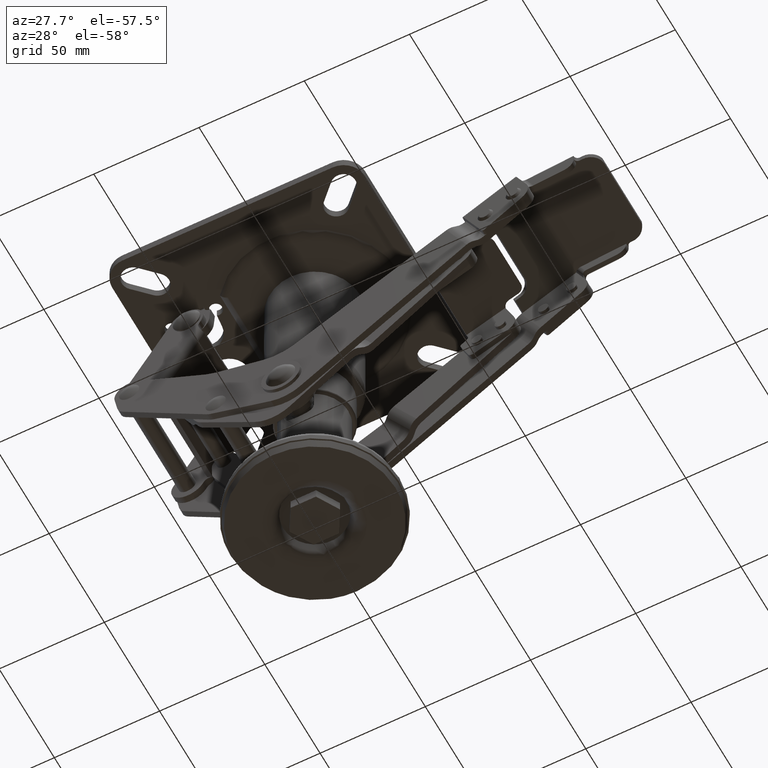
[diagram: clean part render]
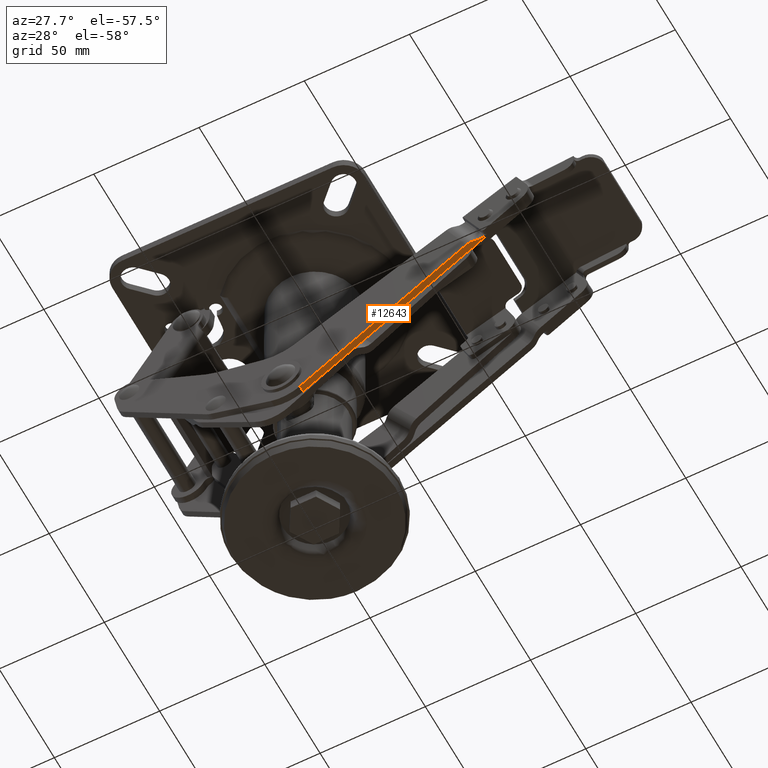
[diagram: same view with one face highlighted and labeled with its STEP entity id]
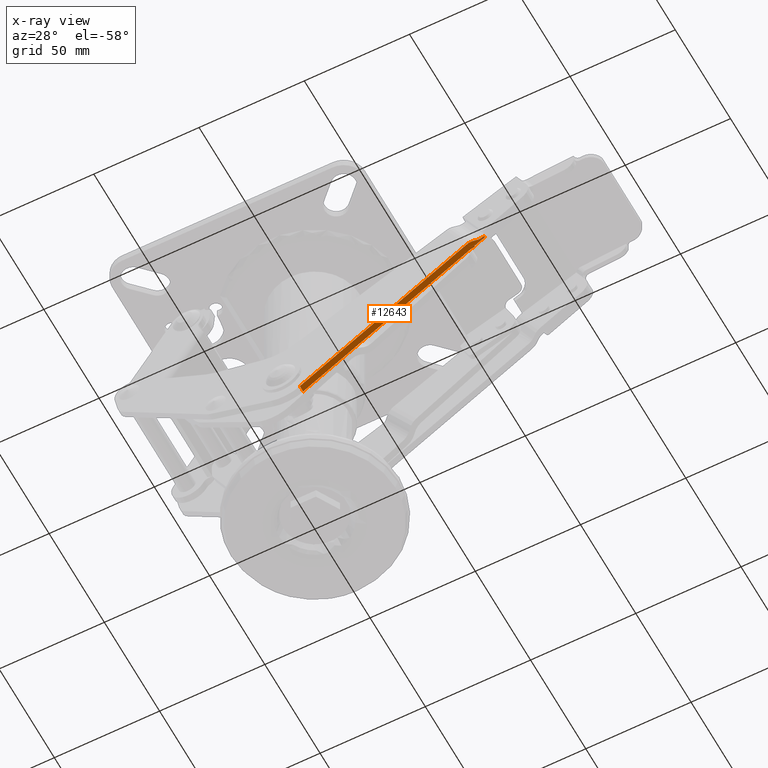
[diagram: x-ray of the same camera — body ghosted, the highlighted face saturated]
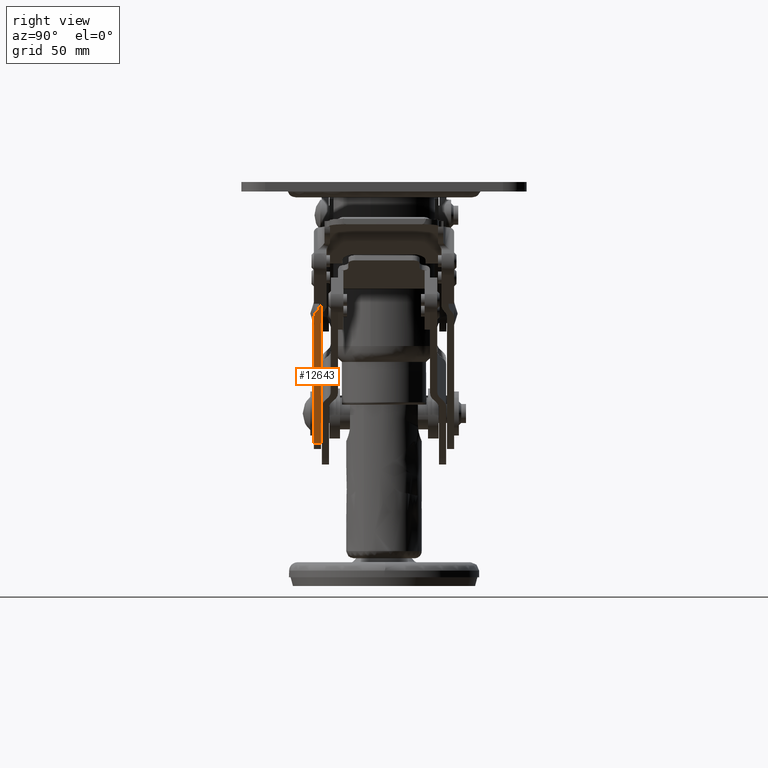
[diagram: same view with one face highlighted and labeled with its STEP entity id]
A machine part, auxiliary view. The second image highlights one B-rep face of the part: STEP entity #12643.
The next image is the same camera in x-ray: the body ghosted, the highlighted face saturated — about 0% of this face is hidden behind the body in this view.
A second angle (right view) of the same face is appended — the face is thin or edge-on in the first view.
In plain terms, the highlighted face is a freeform B-spline surface patch.
Its self-contained STEP definition (entity closure, byte-faithful):
#11953=CARTESIAN_POINT('',(89.729313842261803,-26.047778945925000,-55.354026375014087));
#11954=VERTEX_POINT('',#11953);
#11962=CARTESIAN_POINT('',(87.513095883884702,-26.500000000000000,-56.838427067744597));
#11963=VERTEX_POINT('',#11962);
#11964=CARTESIAN_POINT('',(87.513095883884702,-26.500000000000000,-56.838427067744597));
#11965=CARTESIAN_POINT('',(88.265961319396993,-26.500453821688492,-56.334165305139763));
#11966=CARTESIAN_POINT('',(89.018623730153706,-26.346740855762501,-55.830039526492591));
#11967=CARTESIAN_POINT('',(89.729313842261803,-26.047778945925000,-55.354026375014087));
#11968=B_SPLINE_CURVE_WITH_KNOTS('',3,(#11964,#11965,#11966,#11967),.UNSPECIFIED.,.F.,.U.,(4,4),(9.680939E-009,2.718286174982941),.UNSPECIFIED.);
#11969=EDGE_CURVE('',#11963,#11954,#11968,.T.);
#12005=CARTESIAN_POINT('',(90.998992822317987,-28.350000000000001,-54.503608052927703));
#12006=VERTEX_POINT('',#12005);
#12012=CARTESIAN_POINT('',(94.452934891030793,-27.199999999999999,-52.190192091258112));
#12013=VERTEX_POINT('',#12012);
#12014=CARTESIAN_POINT('',(94.452934891030793,-27.199999999999999,-52.190192091258112));
#12015=CARTESIAN_POINT('',(93.810529079262722,-27.199560350765751,-52.620469099166279));
#12016=CARTESIAN_POINT('',(92.601464642036575,-27.410146424295970,-53.430288404794538));
#12017=CARTESIAN_POINT('',(91.485117166304235,-27.999137256411380,-54.178006814006842));
#12018=CARTESIAN_POINT('',(90.998992822317987,-28.350000000000001,-54.503608052927703));
#12019=B_SPLINE_CURVE_WITH_KNOTS('',3,(#12014,#12015,#12016,#12017,#12018),.UNSPECIFIED.,.F.,.U.,(4,1,4),(0.000000042197829,2.319506076339589,4.366172766742202),.UNSPECIFIED.);
#12020=EDGE_CURVE('',#12013,#12006,#12019,.T.);
#12087=CARTESIAN_POINT('',(87.545050753605111,-29.500000000000000,-56.817024014597301));
#12088=VERTEX_POINT('',#12087);
#12089=CARTESIAN_POINT('',(90.998992822317987,-28.350000000000001,-54.503608052927703));
#12090=CARTESIAN_POINT('',(90.577665353887880,-28.653997930279480,-54.785808990628901));
#12091=CARTESIAN_POINT('',(89.472003781253747,-29.264706496853510,-55.526370088484697));
#12092=CARTESIAN_POINT('',(88.263064999724193,-29.500630718322380,-56.336105231180298));
#12093=CARTESIAN_POINT('',(87.545050753605111,-29.500000000000000,-56.817024014597301));
#12094=B_SPLINE_CURVE_WITH_KNOTS('',3,(#12089,#12090,#12091,#12092,#12093),.UNSPECIFIED.,.F.,.U.,(4,1,4),(0.000000042207645,1.773776226504157,4.366179802982480),.UNSPECIFIED.);
#12095=EDGE_CURVE('',#12006,#12088,#12094,.T.);
#12217=CARTESIAN_POINT('',(89.729313842260495,-26.500000000000000,-55.354026375015003));
#12218=VERTEX_POINT('',#12217);
#12219=CARTESIAN_POINT('',(94.744120023049604,-26.500000000000000,-51.995159192960500));
#12220=VERTEX_POINT('',#12219);
#12221=CARTESIAN_POINT('',(89.729313842260495,-26.500000000000000,-55.354026375015003));
#12222=CARTESIAN_POINT('',(94.744120023049604,-26.500000000000000,-51.995159192960500));
#12223=QUASI_UNIFORM_CURVE('',1,(#12221,#12222),.UNSPECIFIED.,.F.,.U.);
#12224=EDGE_CURVE('',#12218,#12220,#12223,.T.);
#12596=CARTESIAN_POINT('',(99.059630902187621,-29.672438422626222,-49.104673031947101));
#12597=CARTESIAN_POINT('',(4.031955258630787,-29.672438422626222,-112.753262747897400));
#12598=CARTESIAN_POINT('',(99.059630902187621,-25.875340677625090,-49.104673031947101));
#12599=CARTESIAN_POINT('',(4.031955258630787,-25.875340677625090,-112.753262747897400));
#12600=B_SPLINE_SURFACE_WITH_KNOTS('',1,1,((#12596,#12598),(#12597,#12599)),.UNSPECIFIED.,.F.,.F.,.U.,(2,2),(2,2),(0.0,114.373957311297100),(0.0,3.797097745001125),.UNSPECIFIED.);
#12601=CARTESIAN_POINT('',(94.744120023049604,-27.199999999999999,-51.995159192960500));
#12602=VERTEX_POINT('',#12601);
#12603=CARTESIAN_POINT('',(94.744120023049604,-27.199999999999999,-51.995159192960500));
#12604=CARTESIAN_POINT('',(94.452934891030793,-27.199999999999999,-52.190192091258112));
#12605=QUASI_UNIFORM_CURVE('',1,(#12603,#12604),.UNSPECIFIED.,.F.,.U.);
#12606=EDGE_CURVE('',#12602,#12013,#12605,.T.);
#12607=ORIENTED_EDGE('',*,*,#12606,.T.);
#12608=ORIENTED_EDGE('',*,*,#12020,.T.);
#12609=ORIENTED_EDGE('',*,*,#12095,.T.);
#12610=CARTESIAN_POINT('',(8.347470000000000,-29.500000000000000,-109.862774000000000));
#12611=VERTEX_POINT('',#12610);
#12612=CARTESIAN_POINT('',(8.347470000000000,-29.500000000000000,-109.862774000000000));
#12613=CARTESIAN_POINT('',(87.545050753605111,-29.500000000000000,-56.817024014597301));
#12614=QUASI_UNIFORM_CURVE('',1,(#12612,#12613),.UNSPECIFIED.,.F.,.U.);
#12615=EDGE_CURVE('',#12611,#12088,#12614,.T.);
#12616=ORIENTED_EDGE('',*,*,#12615,.F.);
#12617=CARTESIAN_POINT('',(8.347470000000000,-26.500000000000000,-109.862774000000000));
#12618=VERTEX_POINT('',#12617);
#12619=CARTESIAN_POINT('',(8.347470000000000,-26.500000000000000,-109.862774000000000));
#12620=CARTESIAN_POINT('',(8.347470000000000,-29.500000000000000,-109.862774000000000));
#12621=QUASI_UNIFORM_CURVE('',1,(#12619,#12620),.UNSPECIFIED.,.F.,.U.);
#12622=EDGE_CURVE('',#12618,#12611,#12621,.T.);
#12623=ORIENTED_EDGE('',*,*,#12622,.F.);
#12624=CARTESIAN_POINT('',(8.347470000000000,-26.500000000000000,-109.862774000000000));
#12625=CARTESIAN_POINT('',(87.513095883884702,-26.500000000000000,-56.838427067744597));
#12626=QUASI_UNIFORM_CURVE('',1,(#12624,#12625),.UNSPECIFIED.,.F.,.U.);
#12627=EDGE_CURVE('',#12618,#11963,#12626,.T.);
#12628=ORIENTED_EDGE('',*,*,#12627,.T.);
#12629=ORIENTED_EDGE('',*,*,#11969,.T.);
#12630=CARTESIAN_POINT('',(89.729313842260495,-26.500000000000000,-55.354026375015003));
#12631=CARTESIAN_POINT('',(89.729313842261803,-26.047778945925000,-55.354026375014087));
#12632=QUASI_UNIFORM_CURVE('',1,(#12630,#12631),.UNSPECIFIED.,.F.,.U.);
#12633=EDGE_CURVE('',#12218,#11954,#12632,.T.);
#12634=ORIENTED_EDGE('',*,*,#12633,.F.);
#12635=ORIENTED_EDGE('',*,*,#12224,.T.);
#12636=CARTESIAN_POINT('',(94.744120023049604,-26.500000000000000,-51.995159192960500));
#12637=CARTESIAN_POINT('',(94.744120023049604,-27.199999999999999,-51.995159192960500));
#12638=QUASI_UNIFORM_CURVE('',1,(#12636,#12637),.UNSPECIFIED.,.F.,.U.);
#12639=EDGE_CURVE('',#12220,#12602,#12638,.T.);
#12640=ORIENTED_EDGE('',*,*,#12639,.T.);
#12641=EDGE_LOOP('',(#12607,#12608,#12609,#12616,#12623,#12628,#12629,#12634,#12635,#12640));
#12642=FACE_OUTER_BOUND('',#12641,.T.);
#12643=ADVANCED_FACE('',(#12642),#12600,.T.);